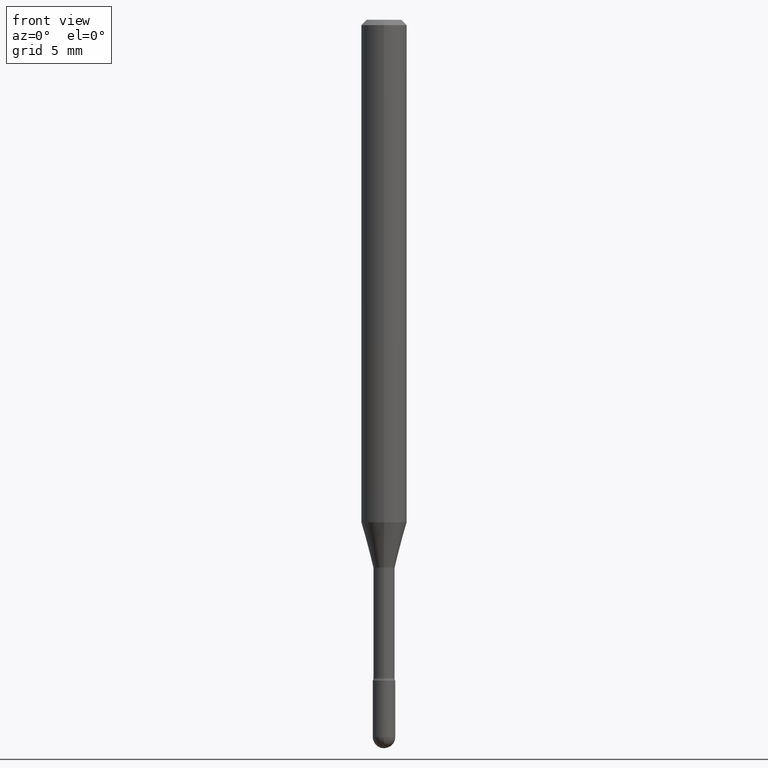
[diagram: clean part render]
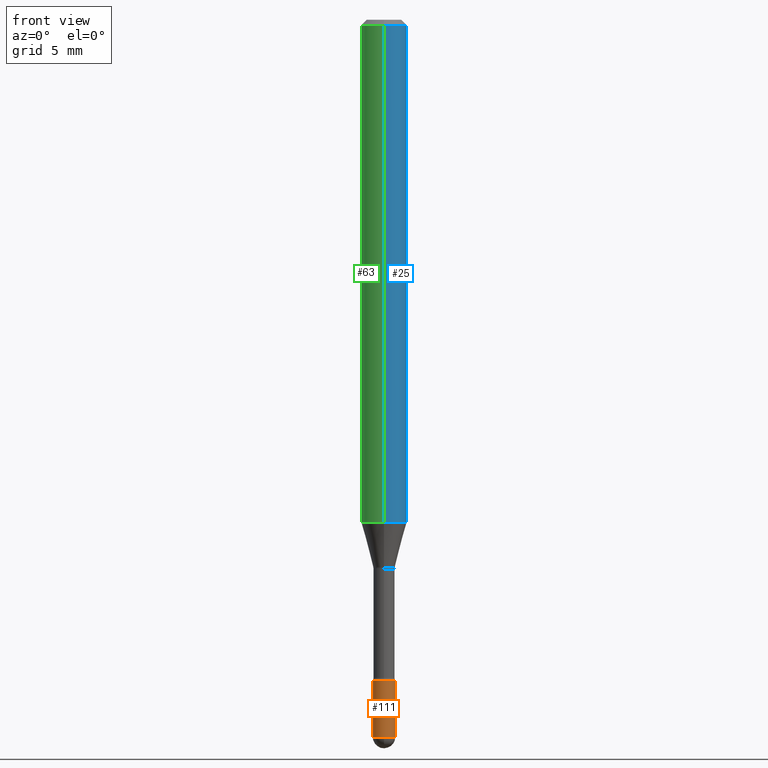
[diagram: same view with three faces highlighted in distinct colors, each labeled with its STEP entity id]
A machine part, front view with three faces highlighted in distinct colors.
Their STEP definitions:

[orange] entity #111 — the highlighted cylindrical surface (edge-blend (fillet) strip) has radius 0.7874 mm, axis along (-0, 0, 1).
#27 = VERTEX_POINT ( 'NONE', #474 ) ;
#55 = EDGE_CURVE ( 'NONE', #65, #91, #61, .T. ) ;
#61 = LINE ( 'NONE', #400, #364 ) ;
#65 = VERTEX_POINT ( 'NONE', #504 ) ;
#75 = VECTOR ( 'NONE', #258, 39.37007874015748143 ) ;
#91 = VERTEX_POINT ( 'NONE', #176 ) ;
#111 = ADVANCED_FACE ( 'NONE', ( #388 ), #178, .T. ) ;
#114 = DIRECTION ( 'NONE',  ( 1.000000000000000000, -6.982962677686270655E-15, 0.000000000000000000 ) ) ;
#130 = AXIS2_PLACEMENT_3D ( 'NONE', #532, #524, #360 ) ;
#134 = CARTESIAN_POINT ( 'NONE',  ( 0.03099999999999999978, -6.550018991669739348E-15, -1.813999999999999835 ) ) ;
#147 = EDGE_LOOP ( 'NONE', ( #418, #413, #353, #237, #554 ) ) ;
#162 = CIRCLE ( 'NONE', #212, 0.03099999999999999978 ) ;
#176 = CARTESIAN_POINT ( 'NONE',  ( -0.03099999999999999978, -6.383868704336178649E-15, -1.813999999999999835 ) ) ;
#178 = CYLINDRICAL_SURFACE ( 'NONE', #130, 0.03099999999999999978 ) ;
#190 = CARTESIAN_POINT ( 'NONE',  ( 0.03099999999999999978, -2.164718430082742572E-16, 1.511614800496739984E-30 ) ) ;
#210 = AXIS2_PLACEMENT_3D ( 'NONE', #320, #437, #315 ) ;
#212 = AXIS2_PLACEMENT_3D ( 'NONE', #333, #284, #241 ) ;
#226 = EDGE_CURVE ( 'NONE', #251, #27, #522, .T. ) ;
#237 = ORIENTED_EDGE ( 'NONE', *, *, #316, .T. ) ;
#241 = DIRECTION ( 'NONE',  ( 1.000000000000000000, -6.982962677686270655E-15, 0.000000000000000000 ) ) ;
#251 = VERTEX_POINT ( 'NONE', #477 ) ;
#258 = DIRECTION ( 'NONE',  ( -2.445468806185136877E-29, 3.491481338843145188E-15, 1.000000000000000000 ) ) ;
#284 = DIRECTION ( 'NONE',  ( -2.445468806185136597E-29, 3.491481338843145583E-15, 1.000000000000000000 ) ) ;
#299 = DIRECTION ( 'NONE',  ( -2.445468806185136597E-29, 3.491481338843145583E-15, 1.000000000000000000 ) ) ;
#300 = EDGE_CURVE ( 'NONE', #65, #251, #162, .T. ) ;
#315 = DIRECTION ( 'NONE',  ( 1.000000000000000000, -6.982962677686270655E-15, 0.000000000000000000 ) ) ;
#316 = EDGE_CURVE ( 'NONE', #27, #562, #501, .T. ) ;
#320 = CARTESIAN_POINT ( 'NONE',  ( 4.815128079378534076E-29, -6.874726756182154000E-15, -1.969000000000000306 ) ) ;
#330 = AXIS2_PLACEMENT_3D ( 'NONE', #548, #299, #114 ) ;
#333 = CARTESIAN_POINT ( 'NONE',  ( 4.815128079378534076E-29, -6.874726756182154000E-15, -1.969000000000000306 ) ) ;
#353 = ORIENTED_EDGE ( 'NONE', *, *, #226, .T. ) ;
#360 = DIRECTION ( 'NONE',  ( 1.000000000000000000, -6.982962677686266711E-15, 4.876176775795935232E-29 ) ) ;
#364 = VECTOR ( 'NONE', #409, 39.37007874015748143 ) ;
#384 = EDGE_CURVE ( 'NONE', #91, #562, #403, .T. ) ;
#388 = FACE_OUTER_BOUND ( 'NONE', #147, .T. ) ;
#400 = CARTESIAN_POINT ( 'NONE',  ( -0.03099999999999999978, 2.202682480856310560E-16, -1.524869877979020612E-30 ) ) ;
#403 = CIRCLE ( 'NONE', #330, 0.03099999999999999978 ) ;
#409 = DIRECTION ( 'NONE',  ( -2.445468806185136877E-29, 3.491481338843145188E-15, 1.000000000000000000 ) ) ;
#413 = ORIENTED_EDGE ( 'NONE', *, *, #300, .T. ) ;
#418 = ORIENTED_EDGE ( 'NONE', *, *, #55, .F. ) ;
#437 = DIRECTION ( 'NONE',  ( -2.445468806185136597E-29, 3.491481338843145583E-15, 1.000000000000000000 ) ) ;
#474 = CARTESIAN_POINT ( 'NONE',  ( 0.03099999999999999978, -6.820608795430084234E-15, -1.969000000000000306 ) ) ;
#477 = CARTESIAN_POINT ( 'NONE',  ( -2.202682480855828862E-16, -0.03100000000000687969, -1.969000000000000306 ) ) ;
#501 = LINE ( 'NONE', #190, #75 ) ;
#504 = CARTESIAN_POINT ( 'NONE',  ( -0.03099999999999999978, -6.383868704336178649E-15, -1.969000000000000306 ) ) ;
#522 = CIRCLE ( 'NONE', #210, 0.03099999999999999978 ) ;
#524 = DIRECTION ( 'NONE',  ( -2.445468806185136597E-29, 3.491481338843145583E-15, 1.000000000000000000 ) ) ;
#532 = CARTESIAN_POINT ( 'NONE',  ( 0.000000000000000000, 0.000000000000000000, 0.000000000000000000 ) ) ;
#548 = CARTESIAN_POINT ( 'NONE',  ( 4.436080414419837365E-29, -6.333547148661465016E-15, -1.813999999999999835 ) ) ;
#554 = ORIENTED_EDGE ( 'NONE', *, *, #384, .F. ) ;
#562 = VERTEX_POINT ( 'NONE', #134 ) ;

[blue] entity #25 — the highlighted cylindrical surface (edge-blend (fillet) strip) has radius 1.5875 mm, axis along (-0, 0, 1).
#6 = FACE_OUTER_BOUND ( 'NONE', #62, .T. ) ;
#10 = DIRECTION ( 'NONE',  ( -6.982962677686265922E-15, -1.000000000000000000, 4.370956789862821150E-15 ) ) ;
#25 = ADVANCED_FACE ( 'NONE', ( #6 ), #529, .T. ) ;
#29 = CIRCLE ( 'NONE', #451, 0.06250000000000000000 ) ;
#62 = EDGE_LOOP ( 'NONE', ( #530, #542, #462, #373 ) ) ;
#66 = CARTESIAN_POINT ( 'NONE',  ( 3.668166800059256219E-31, -5.237274148337879238E-17, -0.01500000000000008271 ) ) ;
#124 = VECTOR ( 'NONE', #346, 39.37007874015748143 ) ;
#217 = DIRECTION ( 'NONE',  ( -2.445444533372823887E-29, 3.491516098891900000E-15, 1.000000000000000000 ) ) ;
#230 = EDGE_CURVE ( 'NONE', #363, #262, #431, .T. ) ;
#262 = VERTEX_POINT ( 'NONE', #391 ) ;
#268 = AXIS2_PLACEMENT_3D ( 'NONE', #66, #279, #550 ) ;
#272 = DIRECTION ( 'NONE',  ( -2.445444533372823887E-29, 3.491516098891900000E-15, 1.000000000000000000 ) ) ;
#279 = DIRECTION ( 'NONE',  ( -2.445444533372823887E-29, 3.491516098891900000E-15, 1.000000000000000000 ) ) ;
#283 = EDGE_CURVE ( 'NONE', #262, #357, #541, .T. ) ;
#312 = DIRECTION ( 'NONE',  ( -2.445444533372824167E-29, 3.491516098891900395E-15, 1.000000000000000000 ) ) ;
#343 = CARTESIAN_POINT ( 'NONE',  ( 4.440892098500625669E-16, 0.06250000000000000000, 2.598536427105023132E-16 ) ) ;
#346 = DIRECTION ( 'NONE',  ( -2.445444533372824167E-29, 3.491516098891900395E-15, 1.000000000000000000 ) ) ;
#351 = AXIS2_PLACEMENT_3D ( 'NONE', #425, #217, #487 ) ;
#357 = VERTEX_POINT ( 'NONE', #527 ) ;
#363 = VERTEX_POINT ( 'NONE', #561 ) ;
#373 = ORIENTED_EDGE ( 'NONE', *, *, #230, .F. ) ;
#391 = CARTESIAN_POINT ( 'NONE',  ( -4.364351673553912750E-16, -0.06250000000000005551, -0.01499999999999986587 ) ) ;
#408 = EDGE_CURVE ( 'NONE', #500, #357, #416, .T. ) ;
#416 = LINE ( 'NONE', #343, #124 ) ;
#425 = CARTESIAN_POINT ( 'NONE',  ( -1.169113584055446105E-44, 1.669184350826100908E-30, 4.780733988912460139E-16 ) ) ;
#426 = CARTESIAN_POINT ( 'NONE',  ( -4.364351673553916201E-16, -0.06250000000000000000, 6.962931550719898132E-16 ) ) ;
#431 = LINE ( 'NONE', #426, #559 ) ;
#438 = CARTESIAN_POINT ( 'NONE',  ( 4.440892098500961428E-16, 0.06249999999999514971, -1.379536105567578552 ) ) ;
#451 = AXIS2_PLACEMENT_3D ( 'NONE', #482, #272, #10 ) ;
#462 = ORIENTED_EDGE ( 'NONE', *, *, #283, .F. ) ;
#482 = CARTESIAN_POINT ( 'NONE',  ( 3.373579027950668951E-29, -4.816672521591835884E-15, -1.379536105567578330 ) ) ;
#487 = DIRECTION ( 'NONE',  ( -6.982962677686265922E-15, -1.000000000000000000, 3.491516098891900000E-15 ) ) ;
#500 = VERTEX_POINT ( 'NONE', #438 ) ;
#527 = CARTESIAN_POINT ( 'NONE',  ( 4.440892098500965372E-16, 0.06249999999999995837, -0.01500000000000030129 ) ) ;
#529 = CYLINDRICAL_SURFACE ( 'NONE', #351, 0.06250000000000000000 ) ;
#530 = ORIENTED_EDGE ( 'NONE', *, *, #547, .T. ) ;
#541 = CIRCLE ( 'NONE', #268, 0.06250000000000000000 ) ;
#542 = ORIENTED_EDGE ( 'NONE', *, *, #408, .T. ) ;
#547 = EDGE_CURVE ( 'NONE', #363, #500, #29, .T. ) ;
#550 = DIRECTION ( 'NONE',  ( -6.982962677686265922E-15, -1.000000000000000000, 3.483106191921935554E-15 ) ) ;
#559 = VECTOR ( 'NONE', #312, 39.37007874015748143 ) ;
#561 = CARTESIAN_POINT ( 'NONE',  ( -4.364351673553580935E-16, -0.06250000000000484335, -1.379536105567578108 ) ) ;

[green] entity #63 — the highlighted cylindrical surface (edge-blend (fillet) strip) has radius 1.5875 mm, axis along (-0, 0, 1).
#32 = DIRECTION ( 'NONE',  ( -6.982962677686265922E-15, -1.000000000000000000, 4.370956789862821150E-15 ) ) ;
#63 = ADVANCED_FACE ( 'NONE', ( #247 ), #440, .T. ) ;
#86 = AXIS2_PLACEMENT_3D ( 'NONE', #225, #313, #32 ) ;
#124 = VECTOR ( 'NONE', #346, 39.37007874015748143 ) ;
#137 = CIRCLE ( 'NONE', #86, 0.06250000000000000000 ) ;
#201 = EDGE_LOOP ( 'NONE', ( #505, #402, #235, #289 ) ) ;
#225 = CARTESIAN_POINT ( 'NONE',  ( 3.373579027950668951E-29, -4.816672521591835884E-15, -1.379536105567578330 ) ) ;
#230 = EDGE_CURVE ( 'NONE', #363, #262, #431, .T. ) ;
#234 = DIRECTION ( 'NONE',  ( -2.445444533372823887E-29, 3.491516098891900000E-15, 1.000000000000000000 ) ) ;
#235 = ORIENTED_EDGE ( 'NONE', *, *, #230, .T. ) ;
#236 = CARTESIAN_POINT ( 'NONE',  ( -1.169113584055446105E-44, 1.669184350826100908E-30, 4.780733988912460139E-16 ) ) ;
#239 = CIRCLE ( 'NONE', #456, 0.06250000000000000000 ) ;
#247 = FACE_OUTER_BOUND ( 'NONE', #201, .T. ) ;
#262 = VERTEX_POINT ( 'NONE', #391 ) ;
#281 = DIRECTION ( 'NONE',  ( -6.982962677686265922E-15, -1.000000000000000000, 3.491516098891900000E-15 ) ) ;
#289 = ORIENTED_EDGE ( 'NONE', *, *, #442, .F. ) ;
#295 = DIRECTION ( 'NONE',  ( -6.982962677686265922E-15, -1.000000000000000000, 3.483106191921935554E-15 ) ) ;
#298 = AXIS2_PLACEMENT_3D ( 'NONE', #236, #234, #281 ) ;
#312 = DIRECTION ( 'NONE',  ( -2.445444533372824167E-29, 3.491516098891900395E-15, 1.000000000000000000 ) ) ;
#313 = DIRECTION ( 'NONE',  ( -2.445444533372823887E-29, 3.491516098891900000E-15, 1.000000000000000000 ) ) ;
#343 = CARTESIAN_POINT ( 'NONE',  ( 4.440892098500625669E-16, 0.06250000000000000000, 2.598536427105023132E-16 ) ) ;
#346 = DIRECTION ( 'NONE',  ( -2.445444533372824167E-29, 3.491516098891900395E-15, 1.000000000000000000 ) ) ;
#357 = VERTEX_POINT ( 'NONE', #527 ) ;
#362 = EDGE_CURVE ( 'NONE', #500, #363, #137, .T. ) ;
#363 = VERTEX_POINT ( 'NONE', #561 ) ;
#368 = DIRECTION ( 'NONE',  ( -2.445444533372823887E-29, 3.491516098891900000E-15, 1.000000000000000000 ) ) ;
#391 = CARTESIAN_POINT ( 'NONE',  ( -4.364351673553912750E-16, -0.06250000000000005551, -0.01499999999999986587 ) ) ;
#402 = ORIENTED_EDGE ( 'NONE', *, *, #362, .T. ) ;
#408 = EDGE_CURVE ( 'NONE', #500, #357, #416, .T. ) ;
#416 = LINE ( 'NONE', #343, #124 ) ;
#426 = CARTESIAN_POINT ( 'NONE',  ( -4.364351673553916201E-16, -0.06250000000000000000, 6.962931550719898132E-16 ) ) ;
#431 = LINE ( 'NONE', #426, #559 ) ;
#438 = CARTESIAN_POINT ( 'NONE',  ( 4.440892098500961428E-16, 0.06249999999999514971, -1.379536105567578552 ) ) ;
#440 = CYLINDRICAL_SURFACE ( 'NONE', #298, 0.06250000000000000000 ) ;
#442 = EDGE_CURVE ( 'NONE', #357, #262, #239, .T. ) ;
#456 = AXIS2_PLACEMENT_3D ( 'NONE', #506, #368, #295 ) ;
#500 = VERTEX_POINT ( 'NONE', #438 ) ;
#505 = ORIENTED_EDGE ( 'NONE', *, *, #408, .F. ) ;
#506 = CARTESIAN_POINT ( 'NONE',  ( 3.668166800059256219E-31, -5.237274148337879238E-17, -0.01500000000000008271 ) ) ;
#527 = CARTESIAN_POINT ( 'NONE',  ( 4.440892098500965372E-16, 0.06249999999999995837, -0.01500000000000030129 ) ) ;
#559 = VECTOR ( 'NONE', #312, 39.37007874015748143 ) ;
#561 = CARTESIAN_POINT ( 'NONE',  ( -4.364351673553580935E-16, -0.06250000000000484335, -1.379536105567578108 ) ) ;